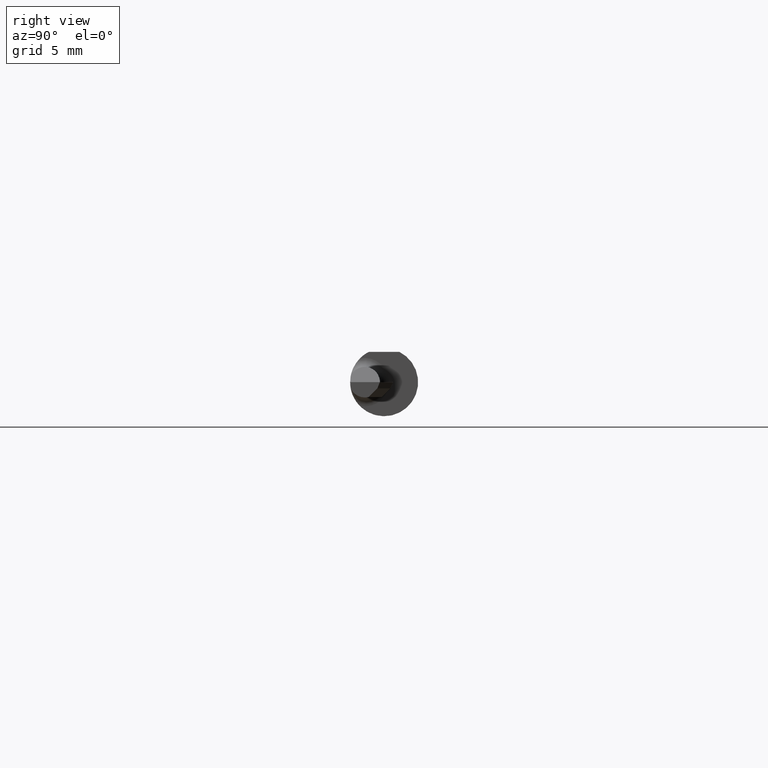
[diagram: clean part render]
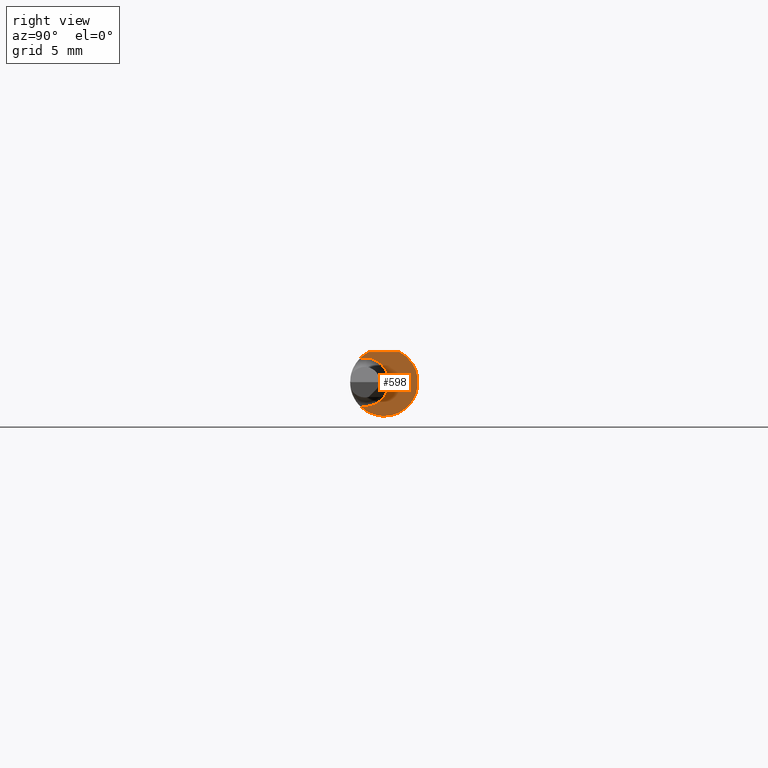
[diagram: same view with one face highlighted and labeled with its STEP entity id]
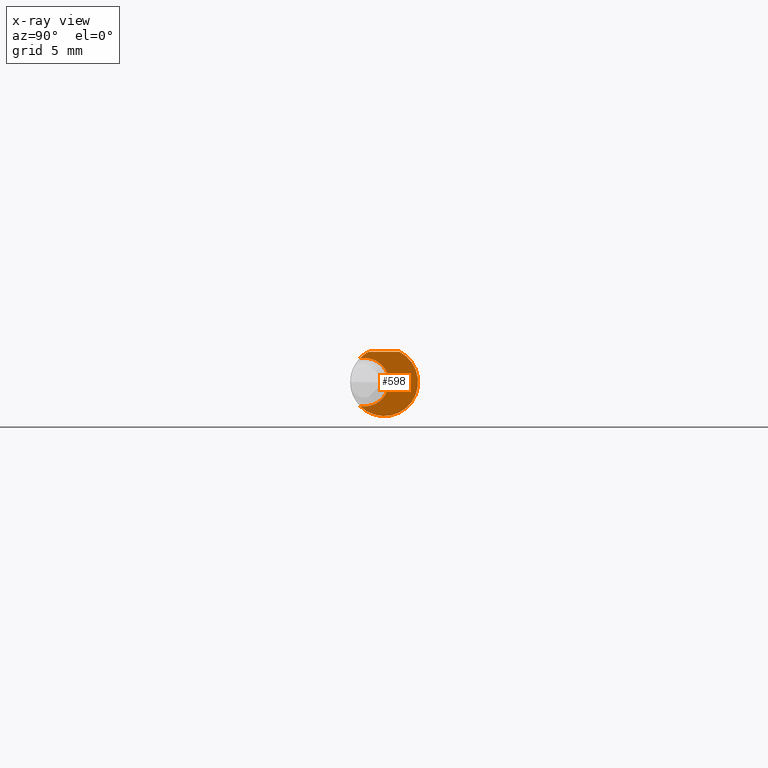
[diagram: x-ray of the same camera — body ghosted, the highlighted face saturated]
A machine part, right view. The second image highlights one B-rep face of the part: STEP entity #598.
The next image is the same camera in x-ray: the body ghosted, the highlighted face saturated — about 1% of this face is hidden behind the body in this view.
In plain terms, the highlighted planar face has unit normal (1, 0, 0).
Its self-contained STEP definition (entity closure, byte-faithful):
#4 = VERTEX_POINT ( 'NONE', #185 ) ;
#5 = CARTESIAN_POINT ( 'NONE',  ( 1.189999999999999947, 0.09359999999999990550, 0.000000000000000000 ) ) ;
#21 = PLANE ( 'NONE',  #255 ) ;
#37 = CARTESIAN_POINT ( 'NONE',  ( 1.189999999999999947, 0.000000000000000000, 0.000000000000000000 ) ) ;
#101 = VERTEX_POINT ( 'NONE', #478 ) ;
#103 = LINE ( 'NONE', #664, #374 ) ;
#108 = DIRECTION ( 'NONE',  ( 1.000000000000000000, 5.600139467623446789E-17, 0.000000000000000000 ) ) ;
#128 = CIRCLE ( 'NONE', #493, 0.09360000000000001652 ) ;
#130 = CIRCLE ( 'NONE', #269, 0.09360000000000001652 ) ;
#141 = DIRECTION ( 'NONE',  ( 0.000000000000000000, -1.000000000000000000, 0.000000000000000000 ) ) ;
#151 = DIRECTION ( 'NONE',  ( 1.000000000000000000, 5.600139467623446789E-17, 0.000000000000000000 ) ) ;
#153 = ORIENTED_EDGE ( 'NONE', *, *, #410, .F. ) ;
#185 = CARTESIAN_POINT ( 'NONE',  ( 1.189999999999999947, -0.04209513035969859179, 0.08359999999999992437 ) ) ;
#188 = DIRECTION ( 'NONE',  ( 0.000000000000000000, 1.000000000000000000, 0.000000000000000000 ) ) ;
#218 = EDGE_CURVE ( 'NONE', #101, #419, #642, .T. ) ;
#255 = AXIS2_PLACEMENT_3D ( 'NONE', #5, #260, #450 ) ;
#256 = EDGE_LOOP ( 'NONE', ( #725, #153, #388, #329 ) ) ;
#260 = DIRECTION ( 'NONE',  ( 1.000000000000000000, 5.600139467623446789E-17, 0.000000000000000000 ) ) ;
#269 = AXIS2_PLACEMENT_3D ( 'NONE', #484, #108, #188 ) ;
#329 = ORIENTED_EDGE ( 'NONE', *, *, #218, .T. ) ;
#333 = CARTESIAN_POINT ( 'NONE',  ( 1.189999999999999947, -0.06665037313432835286, -0.06571672360255648160 ) ) ;
#374 = VECTOR ( 'NONE', #777, 39.37007874015748143 ) ;
#388 = ORIENTED_EDGE ( 'NONE', *, *, #525, .T. ) ;
#398 = DIRECTION ( 'NONE',  ( -1.000000000000000000, -5.600139467623446789E-17, -0.000000000000000000 ) ) ;
#410 = EDGE_CURVE ( 'NONE', #4, #487, #103, .T. ) ;
#419 = VERTEX_POINT ( 'NONE', #333 ) ;
#450 = DIRECTION ( 'NONE',  ( -5.600139467623446789E-17, 1.000000000000000000, 0.000000000000000000 ) ) ;
#478 = CARTESIAN_POINT ( 'NONE',  ( 1.189999999999999947, -0.06665037313432835286, 0.06571672360255648160 ) ) ;
#484 = CARTESIAN_POINT ( 'NONE',  ( 1.189999999999999947, 0.000000000000000000, 0.000000000000000000 ) ) ;
#487 = VERTEX_POINT ( 'NONE', #610 ) ;
#490 = AXIS2_PLACEMENT_3D ( 'NONE', #567, #398, #141 ) ;
#493 = AXIS2_PLACEMENT_3D ( 'NONE', #37, #151, #593 ) ;
#525 = EDGE_CURVE ( 'NONE', #4, #101, #130, .T. ) ;
#567 = CARTESIAN_POINT ( 'NONE',  ( 1.189999999999999947, -0.05360000000000008508, 0.000000000000000000 ) ) ;
#577 = FACE_OUTER_BOUND ( 'NONE', #256, .T. ) ;
#593 = DIRECTION ( 'NONE',  ( 0.000000000000000000, 1.000000000000000000, 0.000000000000000000 ) ) ;
#598 = ADVANCED_FACE ( 'NONE', ( #577 ), #21, .T. ) ;
#610 = CARTESIAN_POINT ( 'NONE',  ( 1.189999999999999947, 0.04209513035969860567, 0.08359999999999989662 ) ) ;
#642 = CIRCLE ( 'NONE', #490, 0.06700000000000000400 ) ;
#664 = CARTESIAN_POINT ( 'NONE',  ( 1.189999999999999947, 0.09359999999999996101, 0.08359999999999992437 ) ) ;
#722 = EDGE_CURVE ( 'NONE', #419, #487, #128, .T. ) ;
#725 = ORIENTED_EDGE ( 'NONE', *, *, #722, .T. ) ;
#777 = DIRECTION ( 'NONE',  ( -5.600139467623446789E-17, 1.000000000000000000, 0.000000000000000000 ) ) ;